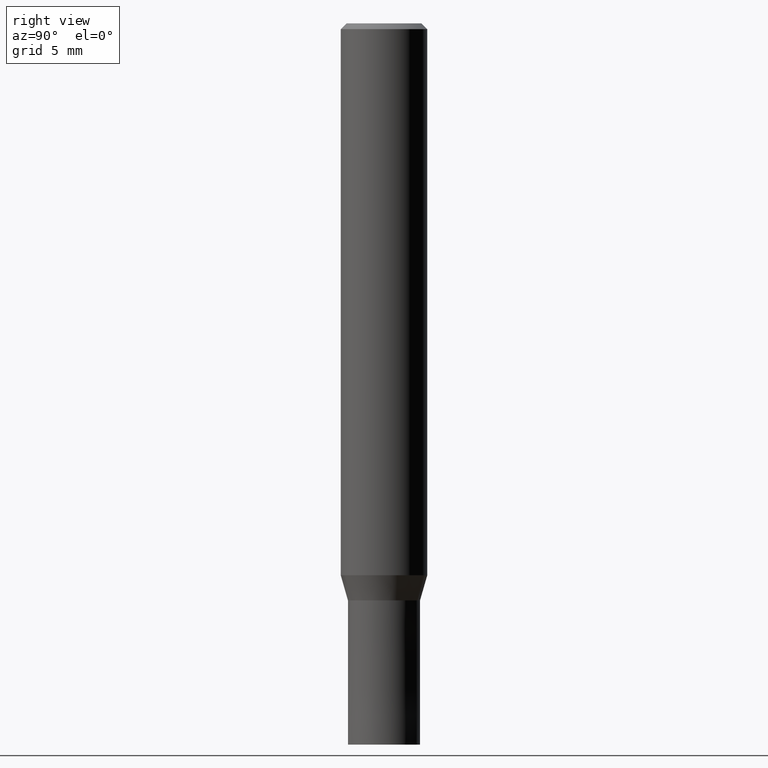
[diagram: clean part render]
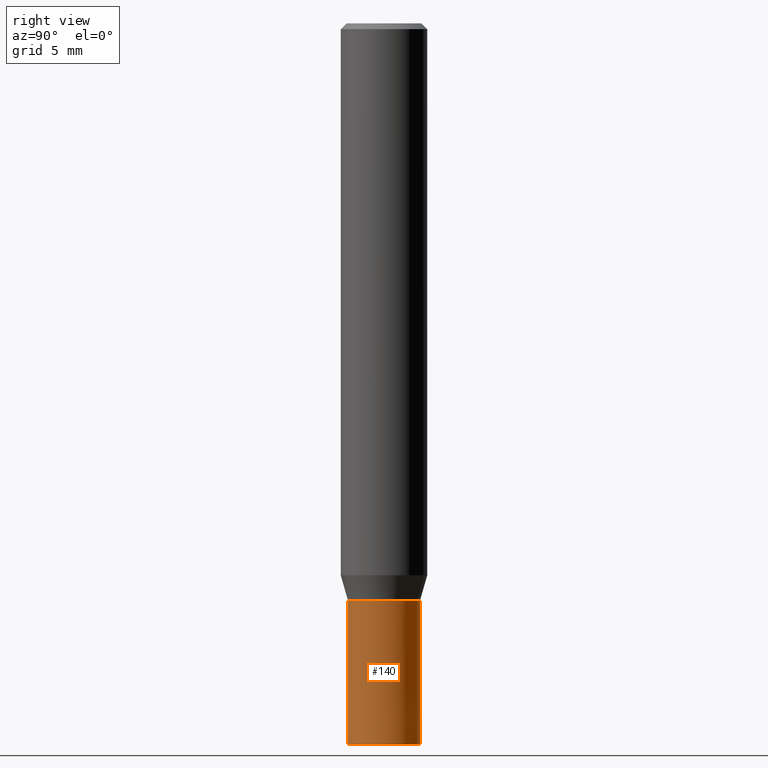
[diagram: same view with one face highlighted and labeled with its STEP entity id]
A machine part, right view. The second image highlights one B-rep face of the part: STEP entity #140.
In plain terms, the highlighted conical surface has half-angle 0.001 deg.
Its self-contained STEP definition (entity closure, byte-faithful):
#88=VERTEX_POINT('',#209);
#96=VERTEX_POINT('',#217);
#98=EDGE_CURVE('',#96,#120,#219,.T.);
#116=EDGE_CURVE('',#156,#88,#240,.T.);
#120=VERTEX_POINT('',#245);
#140=ADVANCED_FACE('',(#269),#270,.T.);
#156=VERTEX_POINT('',#288);
#162=EDGE_CURVE('',#156,#120,#294,.T.);
#182=EDGE_CURVE('',#88,#96,#316,.T.);
#209=CARTESIAN_POINT('',(0.0,2.5,-50.0));
#217=CARTESIAN_POINT('',(3.06151588455594E-016,-2.5,-50.0));
#219=LINE('',#350,#351);
#240=LINE('',#375,#376);
#245=CARTESIAN_POINT('',(3.06139342392056E-016,-2.4999,-40.0));
#269=FACE_OUTER_BOUND('',#409,.T.);
#270=CONICAL_SURFACE('',#410,2.49995,9.99999999968777E-006);
#288=CARTESIAN_POINT('',(0.0,2.4999,-40.0));
#294=CIRCLE('',#442,2.4999);
#316=CIRCLE('',#471,2.5);
#350=CARTESIAN_POINT('',(3.06145465423825E-016,-2.49995,-45.0));
#351=VECTOR('',#485,1.0);
#375=CARTESIAN_POINT('',(-3.06145465423825E-016,2.49995,-45.0));
#376=VECTOR('',#518,1.0);
#409=EDGE_LOOP('',(#554,#555,#556,#557));
#410=AXIS2_PLACEMENT_3D('',#558,#559,#560);
#442=AXIS2_PLACEMENT_3D('',#588,#589,#590);
#471=AXIS2_PLACEMENT_3D('',#615,#616,#617);
#485=DIRECTION('',(-1.22460635376373E-021,9.9999999995211E-006,0.99999999995));
#518=DIRECTION('',(-1.22460635376373E-021,9.9999999995211E-006,-0.99999999995));
#554=ORIENTED_EDGE('',*,*,#116,.F.);
#555=ORIENTED_EDGE('',*,*,#162,.T.);
#556=ORIENTED_EDGE('',*,*,#98,.F.);
#557=ORIENTED_EDGE('',*,*,#182,.F.);
#558=CARTESIAN_POINT('',(0.0,0.0,-45.0));
#559=DIRECTION('',(0.0,-0.0,-1.0));
#560=DIRECTION('',(0.0,1.0,0.0));
#588=CARTESIAN_POINT('',(0.0,0.0,-40.0));
#589=DIRECTION('',(0.0,0.0,-1.0));
#590=DIRECTION('',(0.0,1.0,0.0));
#615=CARTESIAN_POINT('',(0.0,0.0,-50.0));
#616=DIRECTION('',(0.0,0.0,-1.0));
#617=DIRECTION('',(0.0,1.0,0.0));